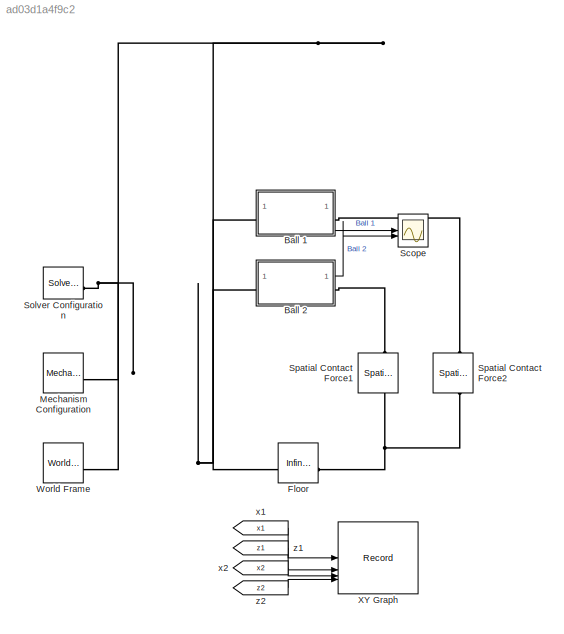
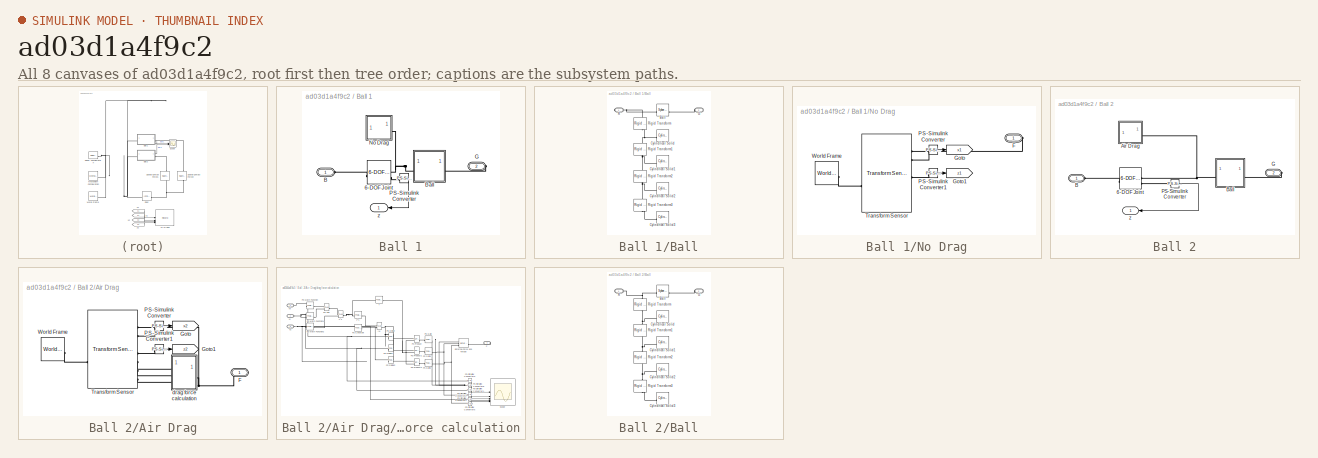
[diagram: thumbnail index - all 8 canvases of the model, root first then tree order]
MODEL slx_ad03d1a4f9c2
KIND model
CONFIG AbsTol = 1e-3
CONFIG EnableMultiTasking = on
CONFIG FixedStep = auto
CONFIG MaxStep = 0.02
CONFIG MinStep = auto
CONFIG RelTol = 1e-3
CONFIG SampleTimeConstraint = Unconstrained
CONFIG SolverName = VariableStepAuto
CONFIG StartTime = 0.0
CONFIG StopTime = 4
BLOCK [SubSystem] Ball 1
  PortSchema = {"entries":[{"content":{"sides":[{"content":{"connectorIds":["LConn1"]},"type":"ConnectorPlacement.EquallySpacedRectSide","uuid":"3c6b6f08-a3c3-45dd-bdf1-b53fac8b6409"},{"content":{"connectorIds":["RConn1","Out1"],"side":"RIGHT"},"type":"ConnectorPlacement.EquallySpacedRectSide","uuid":"f9455517-48bf-46d2-8e82-b6fd30410d54"},{"content":{"side":"TOP"},"type":"ConnectorPlacement.EquallySpacedRectSid...<+234ch>
BLOCK [Reference] Ball 1/6-DOF Joint  REF=sm_lib/Joints/6-DOF Joint
  NameLocation = top
  SourceBlock = sm_lib/Joints/6-DOF Joint
  SourceType = 6-DOF Joint
BLOCK [PMIOPort] Ball 1/B
  Side = Left
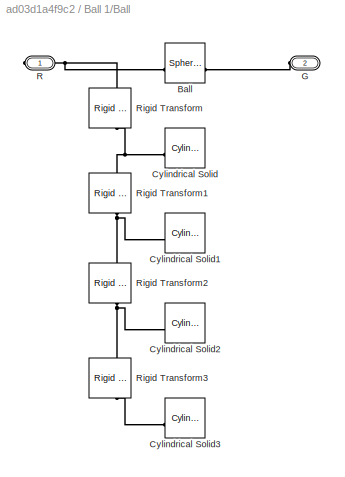
BLOCK [SubSystem] Ball 1/Ball
BLOCK [Reference] Ball 1/Ball/Ball  REF=sm_lib/Body Elements/Spherical Solid
  SourceBlock = sm_lib/Body Elements/Spherical Solid
  SourceType = Spherical Solid
BLOCK [Reference] Ball 1/Ball/Cylindrical Solid  REF=sm_lib/Body Elements/Cylindrical Solid
  SourceBlock = sm_lib/Body Elements/Cylindrical Solid
  SourceType = Cylindrical Solid
BLOCK [Reference] Ball 1/Ball/Cylindrical Solid1  REF=sm_lib/Body Elements/Cylindrical Solid
  SourceBlock = sm_lib/Body Elements/Cylindrical Solid
  SourceType = Cylindrical Solid
BLOCK [Reference] Ball 1/Ball/Cylindrical Solid2  REF=sm_lib/Body Elements/Cylindrical Solid
  SourceBlock = sm_lib/Body Elements/Cylindrical Solid
  SourceType = Cylindrical Solid
BLOCK [Reference] Ball 1/Ball/Cylindrical Solid3  REF=sm_lib/Body Elements/Cylindrical Solid
  SourceBlock = sm_lib/Body Elements/Cylindrical Solid
  SourceType = Cylindrical Solid
BLOCK [PMIOPort] Ball 1/Ball/G
  Port = 2
  Side = Left
BLOCK [PMIOPort] Ball 1/Ball/R
  Side = Right
BLOCK [Reference] Ball 1/Ball/Rigid Transform  REF=sm_lib/Frames and
Transforms/Rigid
Transform
  NameLocation = left
  SourceBlock = sm_lib/Frames and\nTransforms/Rigid\nTransform
  SourceType = Rigid\nTransform
BLOCK [Reference] Ball 1/Ball/Rigid Transform1  REF=sm_lib/Frames and
Transforms/Rigid
Transform
  NameLocation = left
  SourceBlock = sm_lib/Frames and\nTransforms/Rigid\nTransform
  SourceType = Rigid\nTransform
BLOCK [Reference] Ball 1/Ball/Rigid Transform2  REF=sm_lib/Frames and
Transforms/Rigid
Transform
  NameLocation = left
  SourceBlock = sm_lib/Frames and\nTransforms/Rigid\nTransform
  SourceType = Rigid\nTransform
BLOCK [Reference] Ball 1/Ball/Rigid Transform3  REF=sm_lib/Frames and
Transforms/Rigid
Transform
  NameLocation = left
  SourceBlock = sm_lib/Frames and\nTransforms/Rigid\nTransform
  SourceType = Rigid\nTransform
BLOCK [PMIOPort] Ball 1/G
  Port = 2
  Side = Right
BLOCK [SubSystem] Ball 1/No Drag
BLOCK [PMIOPort] Ball 1/No Drag/F
  Side = Right
BLOCK [Goto] Ball 1/No Drag/Goto
  GotoTag = x1
  TagVisibility = global
BLOCK [Goto] Ball 1/No Drag/Goto1
  GotoTag = z1
  TagVisibility = global
BLOCK [Reference] Ball 1/No Drag/PS-Simulink Converter  REF=nesl_utility/PS-Simulink
Converter
  SourceBlock = nesl_utility/PS-Simulink\nConverter
  SourceType = PS-Simulink\nConverter
BLOCK [Reference] Ball 1/No Drag/PS-Simulink Converter1  REF=nesl_utility/PS-Simulink
Converter
  SourceBlock = nesl_utility/PS-Simulink\nConverter
  SourceType = PS-Simulink\nConverter
BLOCK [Reference] Ball 1/No Drag/Transform Sensor  REF=sm_lib/Frames and
Transforms/Transform
Sensor
  NameLocation = top
  SourceBlock = sm_lib/Frames and\nTransforms/Transform\nSensor
  SourceType = Transform\nSensor
BLOCK [Reference] Ball 1/No Drag/World Frame  REF=sm_lib/Frames and
Transforms/World Frame
  SourceBlock = sm_lib/Frames and\nTransforms/World Frame
  SourceType = World Frame
BLOCK [Reference] Ball 1/PS-Simulink Converter  REF=nesl_utility/PS-Simulink
Converter
  SourceBlock = nesl_utility/PS-Simulink\nConverter
  SourceType = PS-Simulink\nConverter
BLOCK [Outport] Ball 1/z
BLOCK [SubSystem] Ball 2
  PortSchema = {"entries":[{"content":{"sides":[{"content":{"connectorIds":["LConn1"]},"type":"ConnectorPlacement.EquallySpacedRectSide","uuid":"3c6b6f08-a3c3-45dd-bdf1-b53fac8b6409"},{"content":{"connectorIds":["RConn1","Out1"],"side":"RIGHT"},"type":"ConnectorPlacement.EquallySpacedRectSide","uuid":"f9455517-48bf-46d2-8e82-b6fd30410d54"},{"content":{"side":"TOP"},"type":"ConnectorPlacement.EquallySpacedRectSid...<+234ch>
BLOCK [Reference] Ball 2/6-DOF Joint  REF=sm_lib/Joints/6-DOF Joint
  NameLocation = top
  SourceBlock = sm_lib/Joints/6-DOF Joint
  SourceType = 6-DOF Joint
BLOCK [SubSystem] Ball 2/Air Drag
BLOCK [PMIOPort] Ball 2/Air Drag/F
  Side = Right
BLOCK [Goto] Ball 2/Air Drag/Goto
  GotoTag = x2
  TagVisibility = global
BLOCK [Goto] Ball 2/Air Drag/Goto1
  GotoTag = z2
  TagVisibility = global
BLOCK [Reference] Ball 2/Air Drag/PS-Simulink Converter  REF=nesl_utility/PS-Simulink
Converter
  SourceBlock = nesl_utility/PS-Simulink\nConverter
  SourceType = PS-Simulink\nConverter
BLOCK [Reference] Ball 2/Air Drag/PS-Simulink Converter1  REF=nesl_utility/PS-Simulink
Converter
  SourceBlock = nesl_utility/PS-Simulink\nConverter
  SourceType = PS-Simulink\nConverter
BLOCK [Reference] Ball 2/Air Drag/Transform Sensor  REF=sm_lib/Frames and
Transforms/Transform
Sensor
  NameLocation = top
  SourceBlock = sm_lib/Frames and\nTransforms/Transform\nSensor
  SourceType = Transform\nSensor
BLOCK [Reference] Ball 2/Air Drag/World Frame  REF=sm_lib/Frames and
Transforms/World Frame
  SourceBlock = sm_lib/Frames and\nTransforms/World Frame
  SourceType = World Frame
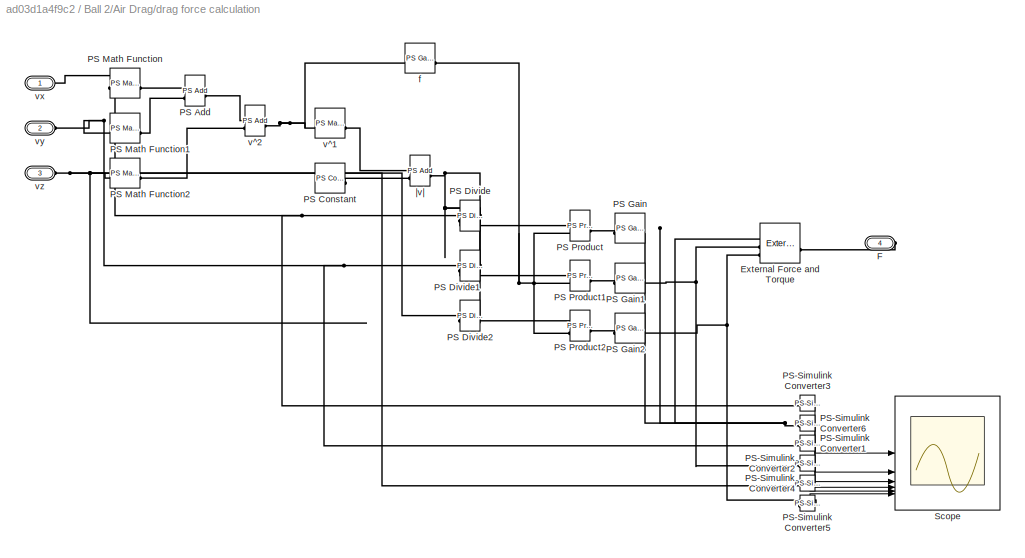
BLOCK [SubSystem] Ball 2/Air Drag/drag force calculation
BLOCK [Reference] Ball 2/Air Drag/drag force calculation/External Force and Torque  REF=sm_lib/Forces and
Torques/External Force
and Torque
  SourceBlock = sm_lib/Forces and\nTorques/External Force\nand Torque
  SourceType = External Force\nand Torque
BLOCK [PMIOPort] Ball 2/Air Drag/drag force calculation/F
  Port = 4
  Side = Right
BLOCK [Reference] Ball 2/Air Drag/drag force calculation/PS Add  REF=fl_lib/Physical Signals/Functions/PS Add
  SourceBlock = fl_lib/Physical Signals/Functions/PS Add
  SourceType = PS Add
BLOCK [Reference] Ball 2/Air Drag/drag force calculation/PS Constant  REF=fl_lib/Physical Signals/Sources/PS Constant
  SourceBlock = fl_lib/Physical Signals/Sources/PS Constant
  SourceType = PS Constant
BLOCK [Reference] Ball 2/Air Drag/drag force calculation/PS Divide  REF=fl_lib/Physical Signals/Functions/PS Divide
  NameLocation = top
  SourceBlock = fl_lib/Physical Signals/Functions/PS Divide
  SourceType = PS Divide
BLOCK [Reference] Ball 2/Air Drag/drag force calculation/PS Divide1  REF=fl_lib/Physical Signals/Functions/PS Divide
  NameLocation = top
  SourceBlock = fl_lib/Physical Signals/Functions/PS Divide
  SourceType = PS Divide
BLOCK [Reference] Ball 2/Air Drag/drag force calculation/PS Divide2  REF=fl_lib/Physical Signals/Functions/PS Divide
  NameLocation = top
  SourceBlock = fl_lib/Physical Signals/Functions/PS Divide
  SourceType = PS Divide
BLOCK [Reference] Ball 2/Air Drag/drag force calculation/PS Gain  REF=fl_lib/Physical Signals/Functions/PS Gain
  SourceBlock = fl_lib/Physical Signals/Functions/PS Gain
  SourceType = PS Gain
BLOCK [Reference] Ball 2/Air Drag/drag force calculation/PS Gain1  REF=fl_lib/Physical Signals/Functions/PS Gain
  SourceBlock = fl_lib/Physical Signals/Functions/PS Gain
  SourceType = PS Gain
BLOCK [Reference] Ball 2/Air Drag/drag force calculation/PS Gain2  REF=fl_lib/Physical Signals/Functions/PS Gain
  SourceBlock = fl_lib/Physical Signals/Functions/PS Gain
  SourceType = PS Gain
BLOCK [Reference] Ball 2/Air Drag/drag force calculation/PS Math Function  REF=fl_lib/Physical Signals/Functions/PS Math Function
  SourceBlock = fl_lib/Physical Signals/Functions/PS Math Function
  SourceType = PS Math Function
BLOCK [Reference] Ball 2/Air Drag/drag force calculation/PS Math Function1  REF=fl_lib/Physical Signals/Functions/PS Math Function
  SourceBlock = fl_lib/Physical Signals/Functions/PS Math Function
  SourceType = PS Math Function
BLOCK [Reference] Ball 2/Air Drag/drag force calculation/PS Math Function2  REF=fl_lib/Physical Signals/Functions/PS Math Function
  SourceBlock = fl_lib/Physical Signals/Functions/PS Math Function
  SourceType = PS Math Function
BLOCK [Reference] Ball 2/Air Drag/drag force calculation/PS Product  REF=fl_lib/Physical Signals/Functions/PS Product
  SourceBlock = fl_lib/Physical Signals/Functions/PS Product
  SourceType = PS Product
BLOCK [Reference] Ball 2/Air Drag/drag force calculation/PS Product1  REF=fl_lib/Physical Signals/Functions/PS Product
  SourceBlock = fl_lib/Physical Signals/Functions/PS Product
  SourceType = PS Product
BLOCK [Reference] Ball 2/Air Drag/drag force calculation/PS Product2  REF=fl_lib/Physical Signals/Functions/PS Product
  SourceBlock = fl_lib/Physical Signals/Functions/PS Product
  SourceType = PS Product
BLOCK [Reference] Ball 2/Air Drag/drag force calculation/PS-Simulink Converter1  REF=nesl_utility/PS-Simulink
Converter
  SourceBlock = nesl_utility/PS-Simulink\nConverter
  SourceType = PS-Simulink\nConverter
BLOCK [Reference] Ball 2/Air Drag/drag force calculation/PS-Simulink Converter2  REF=nesl_utility/PS-Simulink
Converter
  SourceBlock = nesl_utility/PS-Simulink\nConverter
  SourceType = PS-Simulink\nConverter
BLOCK [Reference] Ball 2/Air Drag/drag force calculation/PS-Simulink Converter3  REF=nesl_utility/PS-Simulink
Converter
  SourceBlock = nesl_utility/PS-Simulink\nConverter
  SourceType = PS-Simulink\nConverter
BLOCK [Reference] Ball 2/Air Drag/drag force calculation/PS-Simulink Converter4  REF=nesl_utility/PS-Simulink
Converter
  SourceBlock = nesl_utility/PS-Simulink\nConverter
  SourceType = PS-Simulink\nConverter
BLOCK [Reference] Ball 2/Air Drag/drag force calculation/PS-Simulink Converter5  REF=nesl_utility/PS-Simulink
Converter
  SourceBlock = nesl_utility/PS-Simulink\nConverter
  SourceType = PS-Simulink\nConverter
BLOCK [Reference] Ball 2/Air Drag/drag force calculation/PS-Simulink Converter6  REF=nesl_utility/PS-Simulink
Converter
  SourceBlock = nesl_utility/PS-Simulink\nConverter
  SourceType = PS-Simulink\nConverter
BLOCK [Scope] Ball 2/Air Drag/drag force calculation/Scope
  Floating = off
  NumInputPorts = 6
  ScopeSpecificationString = Simulink.scopes.TimeScopeBlockCfg('CurrentConfiguration', extmgr.ConfigurationSet(extmgr.Configuration('Core','General UI',true),extmgr.Configuration('Core','Source UI',true),extmgr.Configuration('Sources','WiredSimulink',true,'DataLoggingVariableName','ScopeData1'),extmgr.Configuration('Visuals','Time Domain',true,'SerializedDisplays',{struct('MinYLimReal','-0.0000000000000024','MaxYLimReal','0.0...<+5088ch>
BLOCK [Reference] Ball 2/Air Drag/drag force calculation/f  REF=fl_lib/Physical Signals/Functions/PS Gain
  SourceBlock = fl_lib/Physical Signals/Functions/PS Gain
  SourceType = PS Gain
BLOCK [Reference] Ball 2/Air Drag/drag force calculation/v^1  REF=fl_lib/Physical Signals/Functions/PS Math Function
  SourceBlock = fl_lib/Physical Signals/Functions/PS Math Function
  SourceType = PS Math Function
BLOCK [Reference] Ball 2/Air Drag/drag force calculation/v^2  REF=fl_lib/Physical Signals/Functions/PS Add
  SourceBlock = fl_lib/Physical Signals/Functions/PS Add
  SourceType = PS Add
BLOCK [PMIOPort] Ball 2/Air Drag/drag force calculation/vx
  Side = Left
BLOCK [PMIOPort] Ball 2/Air Drag/drag force calculation/vy
  Port = 2
  Side = Left
BLOCK [PMIOPort] Ball 2/Air Drag/drag force calculation/vz
  Port = 3
  Side = Left
BLOCK [Reference] Ball 2/Air Drag/drag force calculation/|v|  REF=fl_lib/Physical Signals/Functions/PS Add
  SourceBlock = fl_lib/Physical Signals/Functions/PS Add
  SourceType = PS Add
BLOCK [PMIOPort] Ball 2/B
  Side = Left
BLOCK [SubSystem] Ball 2/Ball
BLOCK [Reference] Ball 2/Ball/Ball  REF=sm_lib/Body Elements/Spherical Solid
  SourceBlock = sm_lib/Body Elements/Spherical Solid
  SourceType = Spherical Solid
BLOCK [Reference] Ball 2/Ball/Cylindrical Solid  REF=sm_lib/Body Elements/Cylindrical Solid
  SourceBlock = sm_lib/Body Elements/Cylindrical Solid
  SourceType = Cylindrical Solid
BLOCK [Reference] Ball 2/Ball/Cylindrical Solid1  REF=sm_lib/Body Elements/Cylindrical Solid
  SourceBlock = sm_lib/Body Elements/Cylindrical Solid
  SourceType = Cylindrical Solid
BLOCK [Reference] Ball 2/Ball/Cylindrical Solid2  REF=sm_lib/Body Elements/Cylindrical Solid
  SourceBlock = sm_lib/Body Elements/Cylindrical Solid
  SourceType = Cylindrical Solid
BLOCK [Reference] Ball 2/Ball/Cylindrical Solid3  REF=sm_lib/Body Elements/Cylindrical Solid
  SourceBlock = sm_lib/Body Elements/Cylindrical Solid
  SourceType = Cylindrical Solid
BLOCK [PMIOPort] Ball 2/Ball/G
  Port = 2
  Side = Left
BLOCK [PMIOPort] Ball 2/Ball/R
  Side = Right
BLOCK [Reference] Ball 2/Ball/Rigid Transform  REF=sm_lib/Frames and
Transforms/Rigid
Transform
  NameLocation = left
  SourceBlock = sm_lib/Frames and\nTransforms/Rigid\nTransform
  SourceType = Rigid\nTransform
BLOCK [Reference] Ball 2/Ball/Rigid Transform1  REF=sm_lib/Frames and
Transforms/Rigid
Transform
  NameLocation = left
  SourceBlock = sm_lib/Frames and\nTransforms/Rigid\nTransform
  SourceType = Rigid\nTransform
BLOCK [Reference] Ball 2/Ball/Rigid Transform2  REF=sm_lib/Frames and
Transforms/Rigid
Transform
  NameLocation = left
  SourceBlock = sm_lib/Frames and\nTransforms/Rigid\nTransform
  SourceType = Rigid\nTransform
BLOCK [Reference] Ball 2/Ball/Rigid Transform3  REF=sm_lib/Frames and
Transforms/Rigid
Transform
  NameLocation = left
  SourceBlock = sm_lib/Frames and\nTransforms/Rigid\nTransform
  SourceType = Rigid\nTransform
BLOCK [PMIOPort] Ball 2/G
  Port = 2
  Side = Right
BLOCK [Reference] Ball 2/PS-Simulink Converter  REF=nesl_utility/PS-Simulink
Converter
  SourceBlock = nesl_utility/PS-Simulink\nConverter
  SourceType = PS-Simulink\nConverter
BLOCK [Outport] Ball 2/z
BLOCK [Reference] Floor  REF=sm_lib/Curves and Surfaces/Infinite Plane
  SourceBlock = sm_lib/Curves and Surfaces/Infinite Plane
  SourceType = Infinite Plane
BLOCK [Reference] Mechanism Configuration  REF=sm_lib/Utilities/Mechanism
Configuration
  SourceBlock = sm_lib/Utilities/Mechanism\nConfiguration
  SourceType = Mechanism\nConfiguration
BLOCK [Scope] Scope
  Floating = off
  NumInputPorts = 2
  ScopeSpecificationString = Simulink.scopes.TimeScopeBlockCfg('CurrentConfiguration', extmgr.ConfigurationSet(extmgr.Configuration('Core','General UI',true),extmgr.Configuration('Core','Source UI',true),extmgr.Configuration('Sources','WiredSimulink',true),extmgr.Configuration('Visuals','Time Domain',true,'SerializedDisplays',{struct('MinYLimReal','-21.12004','MaxYLimReal','295.38237','YLabelReal','','MinYLimMag','0.00000','M...<+1416ch>
BLOCK [Reference] Solver Configuration  REF=nesl_utility/Solver
Configuration
  SourceBlock = nesl_utility/Solver\nConfiguration
  SourceType = Solver\nConfiguration
BLOCK [Reference] Spatial Contact Force1  REF=sm_lib/Forces and
Torques/Spatial
Contact Force
  NameLocation = right
  SourceBlock = sm_lib/Forces and\nTorques/Spatial\nContact Force
  SourceType = Spatial\nContact Force
BLOCK [Reference] Spatial Contact Force2  REF=sm_lib/Forces and
Torques/Spatial
Contact Force
  NameLocation = right
  SourceBlock = sm_lib/Forces and\nTorques/Spatial\nContact Force
  SourceType = Spatial\nContact Force
BLOCK [Reference] World Frame  REF=sm_lib/Frames and
Transforms/World Frame
  SourceBlock = sm_lib/Frames and\nTransforms/World Frame
  SourceType = World Frame
BLOCK [Record] XY Graph
  CompatibilityTag = XY
  FileSettingsInternal = {"entries":[{"content":{"excelSettings":{"content":{},"type":"Streamout.ExcelSettings"}},"type":"Streamout.FileSettingStorage","uuid":""}],"packageUris":["http:\/\/schema.mathworks.com\/mf0\/streamout_blocks\/R2020a"],"version":"1.0"}
  Layout = [1 1]
  SignalsInternal = {"entries":[{"content":{"signals":[{"content":{"blockPath":[],"dimensions":[1,1],"domain":"","lineColor":"#a2142f","plots":[1],"port":1,"sid":[""],"signalID":594,"signalName":"x1"},"type":"RecordBlkView.Signal","uuid":""},{"content":{"blockPath":[],"dimensions":[1,1],"domain":"","lineColor":"#139fff","plots":[1],"port":2,"sid":[""],"signalID":598,"signalName":"z1"},"type":"RecordBlkView.Signal","u...<+528ch>
  VisualizationBindings = {"xyplotplugin":{"info":[{"series":[{"bindingParametersList":[{"parameter":"X-Axis","signalID":594,"signalName":"x1"},{"parameter":"Y-Axis","signalID":598,"signalName":"z1"}],"seriesID":25835},{"bindingParametersList":[{"parameter":"X-Axis","signalID":602,"signalName":"x2"},{"parameter":"Y-Axis","signalID":606,"signalName":"z2"}],"seriesID":307}],"subplotID":1}]}}
BLOCK [From] x1
  GotoTag = x1
  NameLocation = left
  TagVisibility = global
BLOCK [From] x2
  GotoTag = x2
  NameLocation = left
  TagVisibility = global
BLOCK [From] z1
  GotoTag = z1
  NameLocation = left
  TagVisibility = global
BLOCK [From] z2
  GotoTag = z2
  NameLocation = left
  TagVisibility = global
LINE Ball 1/No Drag/PS-Simulink Converter1:1 -> Ball 1/No Drag/Goto1:1
LINE Ball 1/No Drag/PS-Simulink Converter:1 -> Ball 1/No Drag/Goto:1
LINE Ball 1/PS-Simulink Converter:1 -> Ball 1/z:1
LINE Ball 1:1 -> Scope:1
LINE Ball 2/Air Drag/PS-Simulink Converter1:1 -> Ball 2/Air Drag/Goto1:1
LINE Ball 2/Air Drag/PS-Simulink Converter:1 -> Ball 2/Air Drag/Goto:1
LINE Ball 2/Air Drag/drag force calculation/PS-Simulink Converter1:1 -> Ball 2/Air Drag/drag force calculation/Scope:3
LINE Ball 2/Air Drag/drag force calculation/PS-Simulink Converter2:1 -> Ball 2/Air Drag/drag force calculation/Scope:4
LINE Ball 2/Air Drag/drag force calculation/PS-Simulink Converter3:1 -> Ball 2/Air Drag/drag force calculation/Scope:1
LINE Ball 2/Air Drag/drag force calculation/PS-Simulink Converter4:1 -> Ball 2/Air Drag/drag force calculation/Scope:5
LINE Ball 2/Air Drag/drag force calculation/PS-Simulink Converter5:1 -> Ball 2/Air Drag/drag force calculation/Scope:6
LINE Ball 2/Air Drag/drag force calculation/PS-Simulink Converter6:1 -> Ball 2/Air Drag/drag force calculation/Scope:2
LINE Ball 2/PS-Simulink Converter:1 -> Ball 2/z:1
LINE Ball 2:1 -> Scope:2
LINE x1:1 -> XY Graph:1
LINE x2:1 -> XY Graph:3
LINE z1:1 -> XY Graph:2
LINE z2:1 -> XY Graph:4
PLINE Ball 1/6-DOF Joint:LConn1 -- Ball 1/B:RConn1
PNET net1: Ball 1/6-DOF Joint:RConn1 -- Ball 1/Ball:RConn1 -- Ball 1/No Drag:RConn1
PLINE Ball 1/6-DOF Joint:RConn2 -- Ball 1/PS-Simulink Converter:LConn1
PLINE Ball 1/Ball/Ball:LConn1 -- Ball 1/Ball/G:RConn1
PNET net2: Ball 1/Ball/Ball:RConn1 -- Ball 1/Ball/R:RConn1 -- Ball 1/Ball/Rigid Transform:LConn1
PNET net3: Ball 1/Ball/Cylindrical Solid1:RConn1 -- Ball 1/Ball/Rigid Transform1:RConn1 -- Ball 1/Ball/Rigid Transform2:LConn1
PNET net4: Ball 1/Ball/Cylindrical Solid2:RConn1 -- Ball 1/Ball/Rigid Transform2:RConn1 -- Ball 1/Ball/Rigid Transform3:LConn1
PLINE Ball 1/Ball/Cylindrical Solid3:RConn1 -- Ball 1/Ball/Rigid Transform3:RConn1
PNET net5: Ball 1/Ball/Cylindrical Solid:RConn1 -- Ball 1/Ball/Rigid Transform1:LConn1 -- Ball 1/Ball/Rigid Transform:RConn1
PLINE Ball 1/Ball:LConn1 -- Ball 1/G:RConn1
PLINE Ball 1/No Drag/F:RConn1 -- Ball 1/No Drag/Transform Sensor:RConn1
PLINE Ball 1/No Drag/PS-Simulink Converter1:LConn1 -- Ball 1/No Drag/Transform Sensor:RConn4
PLINE Ball 1/No Drag/PS-Simulink Converter:LConn1 -- Ball 1/No Drag/Transform Sensor:RConn2
PLINE Ball 1/No Drag/Transform Sensor:LConn1 -- Ball 1/No Drag/World Frame:RConn1
PNET net6: Ball 1:LConn1 -- Ball 2:LConn1 -- Floor:LConn1 -- Mechanism Configuration:RConn1 -- Solver Configuration:RConn1 -- World Frame:RConn1
PLINE Ball 1:RConn1 -- Spatial Contact Force2:RConn1
PLINE Ball 2/6-DOF Joint:LConn1 -- Ball 2/B:RConn1
PNET net7: Ball 2/6-DOF Joint:RConn1 -- Ball 2/Air Drag:RConn1 -- Ball 2/Ball:RConn1
PLINE Ball 2/6-DOF Joint:RConn2 -- Ball 2/PS-Simulink Converter:LConn1
PNET net8: Ball 2/Air Drag/F:RConn1 -- Ball 2/Air Drag/Transform Sensor:RConn1 -- Ball 2/Air Drag/drag force calculation:RConn1
PLINE Ball 2/Air Drag/PS-Simulink Converter1:LConn1 -- Ball 2/Air Drag/Transform Sensor:RConn4
PLINE Ball 2/Air Drag/PS-Simulink Converter:LConn1 -- Ball 2/Air Drag/Transform Sensor:RConn2
PLINE Ball 2/Air Drag/Transform Sensor:LConn1 -- Ball 2/Air Drag/World Frame:RConn1
PLINE Ball 2/Air Drag/Transform Sensor:RConn5 -- Ball 2/Air Drag/drag force calculation:LConn1
PLINE Ball 2/Air Drag/Transform Sensor:RConn6 -- Ball 2/Air Drag/drag force calculation:LConn2
PLINE Ball 2/Air Drag/Transform Sensor:RConn7 -- Ball 2/Air Drag/drag force calculation:LConn3
PNET net9: Ball 2/Air Drag/drag force calculation/External Force and Torque:LConn1 -- Ball 2/Air Drag/drag force calculation/PS Gain:RConn1 -- Ball 2/Air Drag/drag force calculation/PS-Simulink Converter6:LConn1
PNET net10: Ball 2/Air Drag/drag force calculation/External Force and Torque:LConn2 -- Ball 2/Air Drag/drag force calculation/PS Gain1:RConn1 -- Ball 2/Air Drag/drag force calculation/PS-Simulink Converter2:LConn1
PNET net11: Ball 2/Air Drag/drag force calculation/External Force and Torque:LConn3 -- Ball 2/Air Drag/drag force calculation/PS Gain2:RConn1 -- Ball 2/Air Drag/drag force calculation/PS-Simulink Converter5:LConn1
PLINE Ball 2/Air Drag/drag force calculation/External Force and Torque:RConn1 -- Ball 2/Air Drag/drag force calculation/F:RConn1
PLINE Ball 2/Air Drag/drag force calculation/PS Add:LConn1 -- Ball 2/Air Drag/drag force calculation/PS Math Function:RConn1
PLINE Ball 2/Air Drag/drag force calculation/PS Add:LConn2 -- Ball 2/Air Drag/drag force calculation/PS Math Function1:RConn1
PLINE Ball 2/Air Drag/drag force calculation/PS Add:RConn1 -- Ball 2/Air Drag/drag force calculation/v^2:LConn1
PLINE Ball 2/Air Drag/drag force calculation/PS Constant:RConn1 -- Ball 2/Air Drag/drag force calculation/|v|:LConn2
PNET net12: Ball 2/Air Drag/drag force calculation/PS Divide1:LConn1 -- Ball 2/Air Drag/drag force calculation/PS Math Function1:LConn1 -- Ball 2/Air Drag/drag force calculation/PS-Simulink Converter1:LConn1 -- Ball 2/Air Drag/drag force calculation/vy:RConn1
PNET net13: Ball 2/Air Drag/drag force calculation/PS Divide1:LConn2 -- Ball 2/Air Drag/drag force calculation/PS Divide2:LConn2 -- Ball 2/Air Drag/drag force calculation/PS Divide:LConn2 -- Ball 2/Air Drag/drag force calculation/|v|:RConn1
PLINE Ball 2/Air Drag/drag force calculation/PS Divide1:RConn1 -- Ball 2/Air Drag/drag force calculation/PS Product1:LConn1
PNET net14: Ball 2/Air Drag/drag force calculation/PS Divide2:LConn1 -- Ball 2/Air Drag/drag force calculation/PS Math Function2:LConn1 -- Ball 2/Air Drag/drag force calculation/PS-Simulink Converter4:LConn1 -- Ball 2/Air Drag/drag force calculation/vz:RConn1
PLINE Ball 2/Air Drag/drag force calculation/PS Divide2:RConn1 -- Ball 2/Air Drag/drag force calculation/PS Product2:LConn1
PNET net15: Ball 2/Air Drag/drag force calculation/PS Divide:LConn1 -- Ball 2/Air Drag/drag force calculation/PS Math Function:LConn1 -- Ball 2/Air Drag/drag force calculation/PS-Simulink Converter3:LConn1 -- Ball 2/Air Drag/drag force calculation/vx:RConn1
PLINE Ball 2/Air Drag/drag force calculation/PS Divide:RConn1 -- Ball 2/Air Drag/drag force calculation/PS Product:LConn1
PLINE Ball 2/Air Drag/drag force calculation/PS Gain1:LConn1 -- Ball 2/Air Drag/drag force calculation/PS Product1:RConn1
PLINE Ball 2/Air Drag/drag force calculation/PS Gain2:LConn1 -- Ball 2/Air Drag/drag force calculation/PS Product2:RConn1
PLINE Ball 2/Air Drag/drag force calculation/PS Gain:LConn1 -- Ball 2/Air Drag/drag force calculation/PS Product:RConn1
PLINE Ball 2/Air Drag/drag force calculation/PS Math Function2:RConn1 -- Ball 2/Air Drag/drag force calculation/v^2:LConn2
PNET net16: Ball 2/Air Drag/drag force calculation/PS Product1:LConn2 -- Ball 2/Air Drag/drag force calculation/PS Product2:LConn2 -- Ball 2/Air Drag/drag force calculation/PS Product:LConn2 -- Ball 2/Air Drag/drag force calculation/f:RConn1
PNET net17: Ball 2/Air Drag/drag force calculation/f:LConn1 -- Ball 2/Air Drag/drag force calculation/v^1:LConn1 -- Ball 2/Air Drag/drag force calculation/v^2:RConn1
PLINE Ball 2/Air Drag/drag force calculation/v^1:RConn1 -- Ball 2/Air Drag/drag force calculation/|v|:LConn1
PLINE Ball 2/Ball/Ball:LConn1 -- Ball 2/Ball/G:RConn1
PNET net18: Ball 2/Ball/Ball:RConn1 -- Ball 2/Ball/R:RConn1 -- Ball 2/Ball/Rigid Transform:LConn1
PNET net19: Ball 2/Ball/Cylindrical Solid1:RConn1 -- Ball 2/Ball/Rigid Transform1:RConn1 -- Ball 2/Ball/Rigid Transform2:LConn1
PNET net20: Ball 2/Ball/Cylindrical Solid2:RConn1 -- Ball 2/Ball/Rigid Transform2:RConn1 -- Ball 2/Ball/Rigid Transform3:LConn1
PLINE Ball 2/Ball/Cylindrical Solid3:RConn1 -- Ball 2/Ball/Rigid Transform3:RConn1
PNET net21: Ball 2/Ball/Cylindrical Solid:RConn1 -- Ball 2/Ball/Rigid Transform1:LConn1 -- Ball 2/Ball/Rigid Transform:RConn1
PLINE Ball 2/Ball:LConn1 -- Ball 2/G:RConn1
PLINE Ball 2:RConn1 -- Spatial Contact Force1:RConn1
PNET net22: Floor:RConn1 -- Spatial Contact Force1:LConn1 -- Spatial Contact Force2:LConn1
note: PNET lines group multi-terminal physical nets as a canonical sorted terminal list (undirected conserving connections); 2-terminal nets keep the pairwise PLINE form
